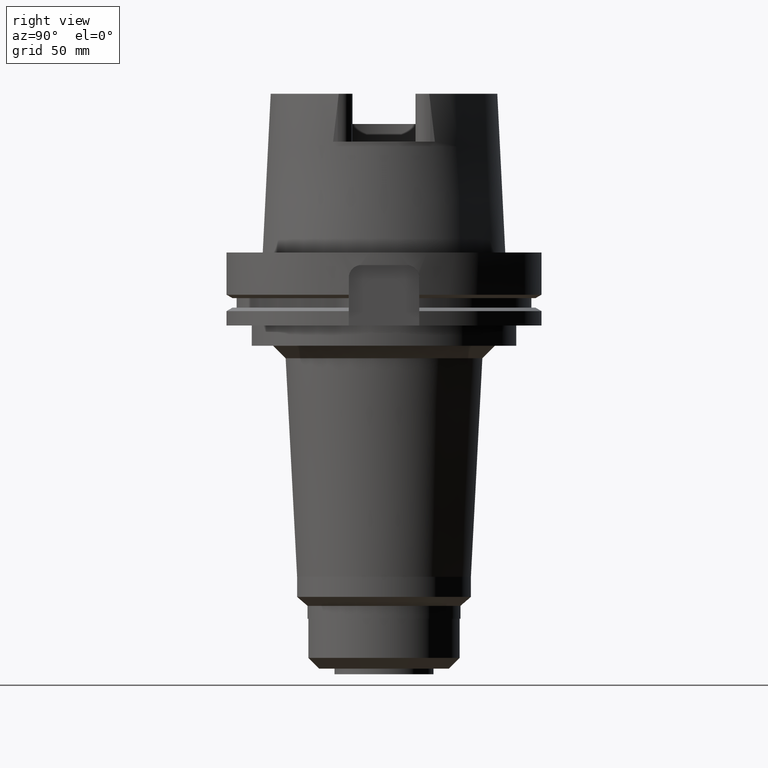
[diagram: clean part render]
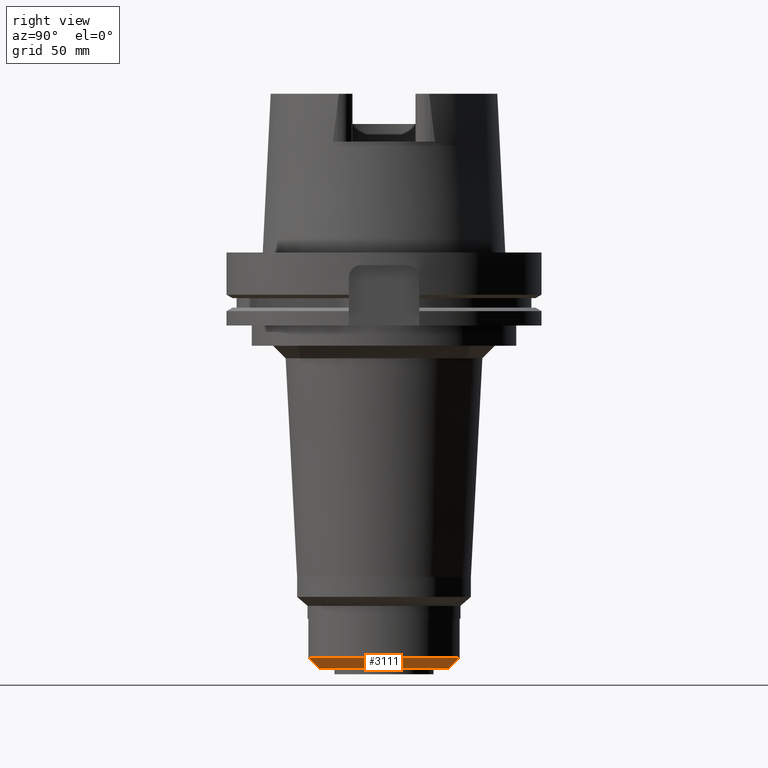
[diagram: same view with one face highlighted and labeled with its STEP entity id]
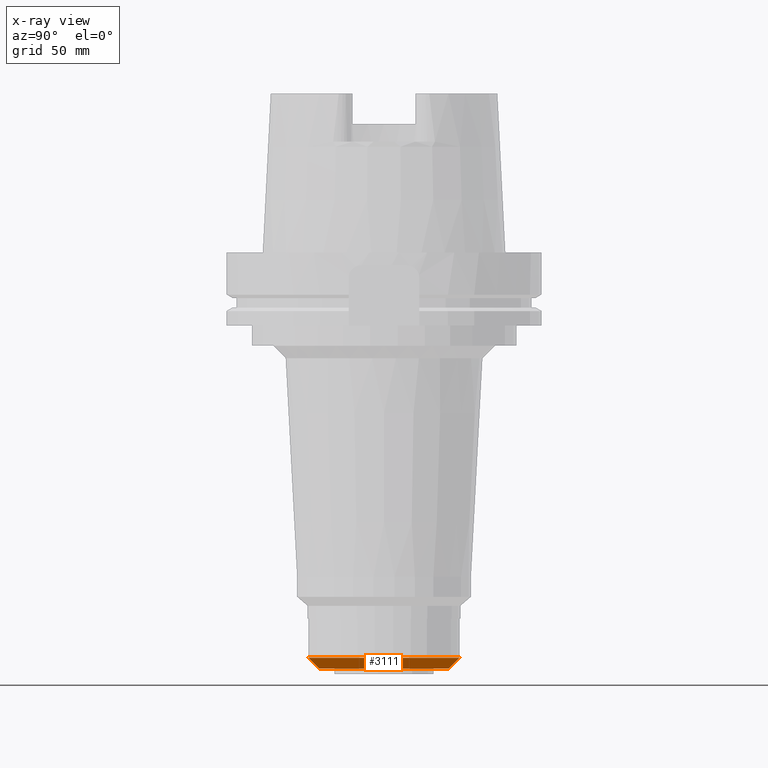
[diagram: x-ray of the same camera — body ghosted, the highlighted face saturated]
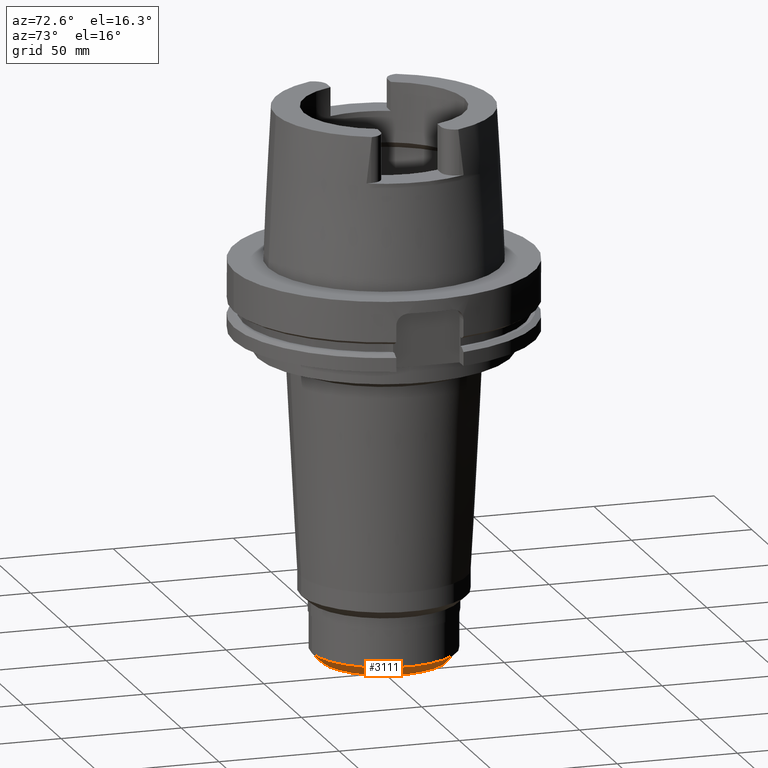
[diagram: same view with one face highlighted and labeled with its STEP entity id]
A machine part, right view. The second image highlights one B-rep face of the part: STEP entity #3111.
The next image is the same camera in x-ray: the body ghosted, the highlighted face saturated — about 0% of this face is hidden behind the body in this view.
A second angle (auxiliary view) of the same face is appended — the face is thin or edge-on in the first view.
In plain terms, the highlighted conical surface has half-angle 45 deg.
Its self-contained STEP definition (entity closure, byte-faithful):
#781=CARTESIAN_POINT('',(0.E0,-1.384463206436E-14,-1.652E2));
#782=DIRECTION('',(0.E0,0.E0,1.E0));
#783=DIRECTION('',(0.E0,-1.E0,0.E0));
#784=AXIS2_PLACEMENT_3D('',#781,#782,#783);
#813=DIRECTION('',(0.E0,-7.071067811866E-1,-7.071067811865E-1));
#814=VECTOR('',#813,6.081118318204E0);
#815=CARTESIAN_POINT('',(0.E0,3.E1,-1.609E2));
#816=LINE('',#815,#814);
#820=CARTESIAN_POINT('',(0.E0,-1.384463206436E-14,-1.609E2));
#821=DIRECTION('',(0.E0,0.E0,1.E0));
#822=DIRECTION('',(0.E0,-1.E0,0.E0));
#823=AXIS2_PLACEMENT_3D('',#820,#821,#822);
#836=DIRECTION('',(0.E0,7.071067811866E-1,-7.071067811865E-1));
#837=VECTOR('',#836,6.081118318204E0);
#838=CARTESIAN_POINT('',(0.E0,-3.E1,-1.609E2));
#839=LINE('',#838,#837);
#2249=CARTESIAN_POINT('',(0.E0,-2.57E1,-1.652E2));
#2250=CARTESIAN_POINT('',(0.E0,2.57E1,-1.652E2));
#2251=VERTEX_POINT('',#2249);
#2252=VERTEX_POINT('',#2250);
#2253=CARTESIAN_POINT('',(0.E0,3.E1,-1.609E2));
#2254=VERTEX_POINT('',#2253);
#2255=CARTESIAN_POINT('',(0.E0,-3.E1,-1.609E2));
#2256=VERTEX_POINT('',#2255);
#3097=CARTESIAN_POINT('',(0.E0,-1.384463206436E-14,-1.6305E2));
#3098=DIRECTION('',(0.E0,0.E0,1.E0));
#3099=DIRECTION('',(0.E0,1.E0,0.E0));
#3100=AXIS2_PLACEMENT_3D('',#3097,#3098,#3099);
#3101=CONICAL_SURFACE('',#3100,2.785E1,4.5E1);
#3103=ORIENTED_EDGE('',*,*,#3102,.T.);
#3104=ORIENTED_EDGE('',*,*,#3086,.F.);
#3106=ORIENTED_EDGE('',*,*,#3105,.F.);
#3108=ORIENTED_EDGE('',*,*,#3107,.T.);
#3109=EDGE_LOOP('',(#3103,#3104,#3106,#3108));
#3110=FACE_OUTER_BOUND('',#3109,.F.);
#785=CIRCLE('',#784,2.57E1);
#824=CIRCLE('',#823,3.E1);
#3086=EDGE_CURVE('',#2251,#2252,#785,.T.);
#3102=EDGE_CURVE('',#2254,#2252,#816,.T.);
#3105=EDGE_CURVE('',#2256,#2251,#839,.T.);
#3107=EDGE_CURVE('',#2256,#2254,#824,.T.);
#3111=ADVANCED_FACE('',(#3110),#3101,.T.);